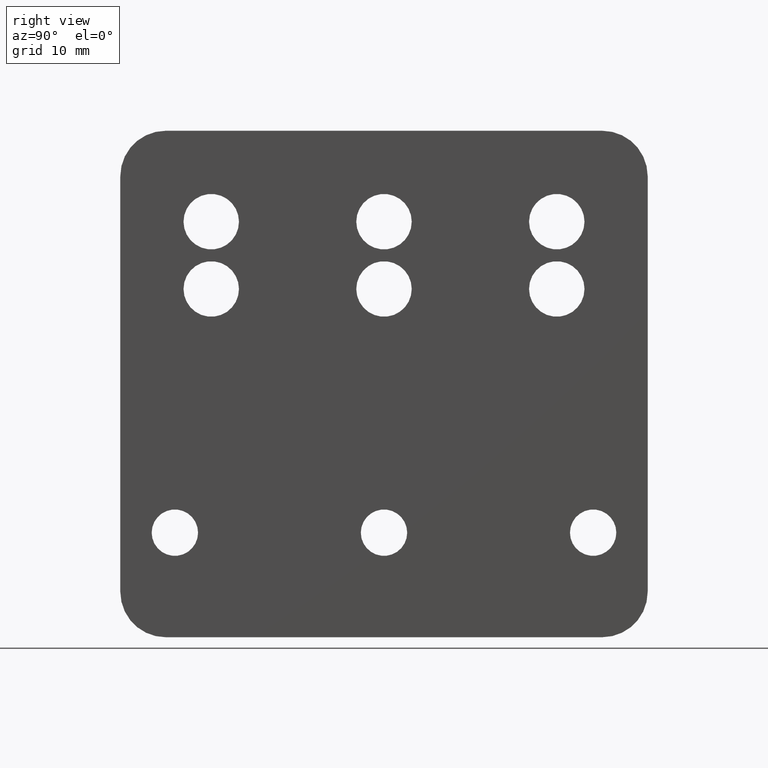
[diagram: clean part render]
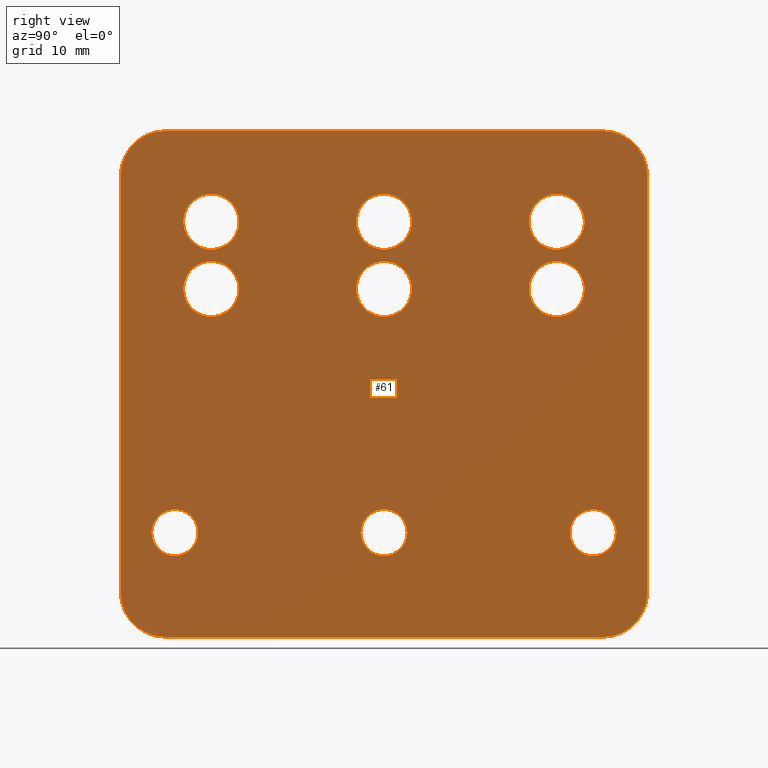
[diagram: same view with one face highlighted and labeled with its STEP entity id]
A machine part, right view. The second image highlights one B-rep face of the part: STEP entity #61.
In plain terms, the highlighted planar face has unit normal (-1, 0, 0).
Its self-contained STEP definition (entity closure, byte-faithful):
#61=ADVANCED_FACE('',(#131,#132,#133,#134,#135,#136,#137,#138,#139,#140),#141,.F.);
#131=FACE_BOUND('',#222,.T.);
#132=FACE_BOUND('',#223,.T.);
#133=FACE_BOUND('',#224,.T.);
#134=FACE_BOUND('',#225,.T.);
#135=FACE_BOUND('',#226,.T.);
#136=FACE_BOUND('',#227,.T.);
#137=FACE_BOUND('',#228,.T.);
#138=FACE_BOUND('',#229,.T.);
#139=FACE_BOUND('',#230,.T.);
#140=FACE_OUTER_BOUND('',#231,.T.);
#141=PLANE('',#232);
#222=EDGE_LOOP('',(#334));
#223=EDGE_LOOP('',(#335));
#224=EDGE_LOOP('',(#336));
#225=EDGE_LOOP('',(#337));
#226=EDGE_LOOP('',(#338));
#227=EDGE_LOOP('',(#339));
#228=EDGE_LOOP('',(#340));
#229=EDGE_LOOP('',(#341));
#230=EDGE_LOOP('',(#342));
#231=EDGE_LOOP('',(#343,#344,#345,#346,#347,#348,#349,#350));
#232=AXIS2_PLACEMENT_3D('',#351,#352,#353);
#334=ORIENTED_EDGE('',*,*,#435,.F.);
#335=ORIENTED_EDGE('',*,*,#443,.F.);
#336=ORIENTED_EDGE('',*,*,#446,.F.);
#337=ORIENTED_EDGE('',*,*,#466,.F.);
#338=ORIENTED_EDGE('',*,*,#460,.F.);
#339=ORIENTED_EDGE('',*,*,#452,.F.);
#340=ORIENTED_EDGE('',*,*,#449,.F.);
#341=ORIENTED_EDGE('',*,*,#467,.F.);
#342=ORIENTED_EDGE('',*,*,#468,.F.);
#343=ORIENTED_EDGE('',*,*,#437,.F.);
#344=ORIENTED_EDGE('',*,*,#469,.F.);
#345=ORIENTED_EDGE('',*,*,#470,.F.);
#346=ORIENTED_EDGE('',*,*,#471,.F.);
#347=ORIENTED_EDGE('',*,*,#472,.F.);
#348=ORIENTED_EDGE('',*,*,#454,.F.);
#349=ORIENTED_EDGE('',*,*,#473,.F.);
#350=ORIENTED_EDGE('',*,*,#462,.F.);
#351=CARTESIAN_POINT('',(0.0,-47.0000000000033,-6.50000000000175));
#352=DIRECTION('',(-1.0,0.0,0.0));
#353=DIRECTION('',(0.0,-1.0,0.0));
#435=EDGE_CURVE('',#497,#497,#498,.T.);
#437=EDGE_CURVE('',#500,#501,#502,.T.);
#443=EDGE_CURVE('',#511,#511,#512,.T.);
#446=EDGE_CURVE('',#516,#516,#517,.T.);
#449=EDGE_CURVE('',#521,#521,#522,.T.);
#452=EDGE_CURVE('',#526,#526,#527,.T.);
#454=EDGE_CURVE('',#529,#530,#531,.T.);
#460=EDGE_CURVE('',#540,#540,#541,.T.);
#462=EDGE_CURVE('',#501,#543,#544,.T.);
#466=EDGE_CURVE('',#549,#549,#550,.T.);
#467=EDGE_CURVE('',#551,#551,#552,.T.);
#468=EDGE_CURVE('',#553,#553,#554,.T.);
#469=EDGE_CURVE('',#555,#500,#556,.T.);
#470=EDGE_CURVE('',#557,#555,#558,.T.);
#471=EDGE_CURVE('',#559,#557,#560,.T.);
#472=EDGE_CURVE('',#530,#559,#561,.T.);
#473=EDGE_CURVE('',#543,#529,#562,.T.);
#497=VERTEX_POINT('',#592);
#498=CIRCLE('',#593,3.05);
#500=VERTEX_POINT('',#595);
#501=VERTEX_POINT('',#596);
#502=CIRCLE('',#597,5.0);
#511=VERTEX_POINT('',#608);
#512=CIRCLE('',#609,2.55);
#516=VERTEX_POINT('',#613);
#517=CIRCLE('',#614,2.55);
#521=VERTEX_POINT('',#618);
#522=CIRCLE('',#619,3.05);
#526=VERTEX_POINT('',#623);
#527=CIRCLE('',#624,3.05);
#529=VERTEX_POINT('',#626);
#530=VERTEX_POINT('',#627);
#531=LINE('',#628,#629);
#540=VERTEX_POINT('',#641);
#541=CIRCLE('',#642,3.05);
#543=VERTEX_POINT('',#644);
#544=LINE('',#645,#646);
#549=VERTEX_POINT('',#653);
#550=CIRCLE('',#654,2.55);
#551=VERTEX_POINT('',#655);
#552=CIRCLE('',#656,3.05);
#553=VERTEX_POINT('',#657);
#554=CIRCLE('',#658,3.05);
#555=VERTEX_POINT('',#659);
#556=LINE('',#660,#661);
#557=VERTEX_POINT('',#662);
#558=CIRCLE('',#663,5.0);
#559=VERTEX_POINT('',#664);
#560=LINE('',#665,#666);
#561=CIRCLE('',#667,5.0);
#562=CIRCLE('',#668,5.0);
#592=CARTESIAN_POINT('',(0.0,-0.950000000003151,34.1999999999976));
#593=AXIS2_PLACEMENT_3D('',#703,#704,#705);
#595=CARTESIAN_POINT('',(0.0,-47.0000000000033,-11.5000000000025));
#596=CARTESIAN_POINT('',(0.0,-52.0000000000032,-6.50000000000175));
#597=AXIS2_PLACEMENT_3D('',#706,#707,#708);
#608=CARTESIAN_POINT('',(0.0,2.54999999999757,-1.79543879763599E-012));
#609=AXIS2_PLACEMENT_3D('',#717,#718,#719);
#613=CARTESIAN_POINT('',(0.0,-43.4500000000027,-1.79543879763599E-012));
#614=AXIS2_PLACEMENT_3D('',#723,#724,#725);
#618=CARTESIAN_POINT('',(0.0,-0.950000000003151,26.7999999999979));
#619=AXIS2_PLACEMENT_3D('',#729,#730,#731);
#623=CARTESIAN_POINT('',(0.0,-19.9500000000033,26.7999999999979));
#624=AXIS2_PLACEMENT_3D('',#735,#736,#737);
#626=CARTESIAN_POINT('',(0.0,-47.0000000000033,44.1999999999982));
#627=CARTESIAN_POINT('',(0.0,0.999999999996746,44.1999999999982));
#628=CARTESIAN_POINT('',(0.0,-47.0000000000033,44.1999999999982));
#629=VECTOR('',#738,1.0);
#641=CARTESIAN_POINT('',(0.0,-38.9500000000025,26.7999999999979));
#642=AXIS2_PLACEMENT_3D('',#745,#746,#747);
#644=CARTESIAN_POINT('',(0.0,-52.0000000000032,39.1999999999983));
#645=CARTESIAN_POINT('',(0.0,-52.0000000000032,-6.50000000000175));
#646=VECTOR('',#748,1.0);
#653=CARTESIAN_POINT('',(0.0,-20.450000000003,-1.79543879763599E-012));
#654=AXIS2_PLACEMENT_3D('',#751,#752,#753);
#655=CARTESIAN_POINT('',(0.0,-38.9500000000025,34.1999999999976));
#656=AXIS2_PLACEMENT_3D('',#754,#755,#756);
#657=CARTESIAN_POINT('',(0.0,-19.9500000000033,34.1999999999976));
#658=AXIS2_PLACEMENT_3D('',#757,#758,#759);
#659=CARTESIAN_POINT('',(0.0,0.999999999996746,-11.5000000000025));
#660=CARTESIAN_POINT('',(0.0,0.999999999996746,-11.5000000000025));
#661=VECTOR('',#760,1.0);
#662=CARTESIAN_POINT('',(0.0,5.99999999999664,-6.50000000000175));
#663=AXIS2_PLACEMENT_3D('',#761,#762,#763);
#664=CARTESIAN_POINT('',(0.0,5.99999999999664,39.1999999999983));
#665=CARTESIAN_POINT('',(0.0,5.99999999999664,39.1999999999983));
#666=VECTOR('',#764,1.0);
#667=AXIS2_PLACEMENT_3D('',#765,#766,#767);
#668=AXIS2_PLACEMENT_3D('',#768,#769,#770);
#703=CARTESIAN_POINT('',(0.0,-4.00000000000315,34.1999999999976));
#704=DIRECTION('',(1.0,0.0,0.0));
#705=DIRECTION('',(0.0,1.0,0.0));
#706=CARTESIAN_POINT('',(0.0,-47.0000000000033,-6.50000000000175));
#707=DIRECTION('',(-1.0,0.0,0.0));
#708=DIRECTION('',(0.0,-1.0,0.0));
#717=CARTESIAN_POINT('',(0.0,-2.7000970903579E-012,-1.79543879763599E-012));
#718=DIRECTION('',(1.0,0.0,0.0));
#719=DIRECTION('',(0.0,1.0,0.0));
#723=CARTESIAN_POINT('',(0.0,-46.000000000003,-1.79543879763599E-012));
#724=DIRECTION('',(1.0,0.0,0.0));
#725=DIRECTION('',(0.0,1.0,0.0));
#729=CARTESIAN_POINT('',(0.0,-4.00000000000315,26.7999999999979));
#730=DIRECTION('',(1.0,0.0,0.0));
#731=DIRECTION('',(0.0,1.0,0.0));
#735=CARTESIAN_POINT('',(0.0,-23.0000000000033,26.7999999999979));
#736=DIRECTION('',(1.0,0.0,0.0));
#737=DIRECTION('',(0.0,1.0,0.0));
#738=DIRECTION('',(0.0,1.0,0.0));
#745=CARTESIAN_POINT('',(0.0,-42.0000000000025,26.7999999999979));
#746=DIRECTION('',(1.0,0.0,0.0));
#747=DIRECTION('',(0.0,1.0,0.0));
#748=DIRECTION('',(0.0,0.0,1.0));
#751=CARTESIAN_POINT('',(0.0,-23.0000000000033,-1.79543879763599E-012));
#752=DIRECTION('',(1.0,0.0,0.0));
#753=DIRECTION('',(0.0,1.0,0.0));
#754=CARTESIAN_POINT('',(0.0,-42.0000000000025,34.1999999999976));
#755=DIRECTION('',(1.0,0.0,0.0));
#756=DIRECTION('',(0.0,1.0,0.0));
#757=CARTESIAN_POINT('',(0.0,-23.0000000000033,34.1999999999976));
#758=DIRECTION('',(1.0,0.0,0.0));
#759=DIRECTION('',(0.0,1.0,0.0));
#760=DIRECTION('',(0.0,-1.0,0.0));
#761=CARTESIAN_POINT('',(0.0,0.999999999996746,-6.50000000000175));
#762=DIRECTION('',(-1.0,0.0,0.0));
#763=DIRECTION('',(0.0,-1.0,0.0));
#764=DIRECTION('',(0.0,0.0,-1.0));
#765=CARTESIAN_POINT('',(0.0,0.999999999996746,39.1999999999983));
#766=DIRECTION('',(-1.0,0.0,0.0));
#767=DIRECTION('',(0.0,-1.0,0.0));
#768=CARTESIAN_POINT('',(0.0,-47.0000000000033,39.1999999999983));
#769=DIRECTION('',(-1.0,0.0,0.0));
#770=DIRECTION('',(0.0,-1.0,0.0));